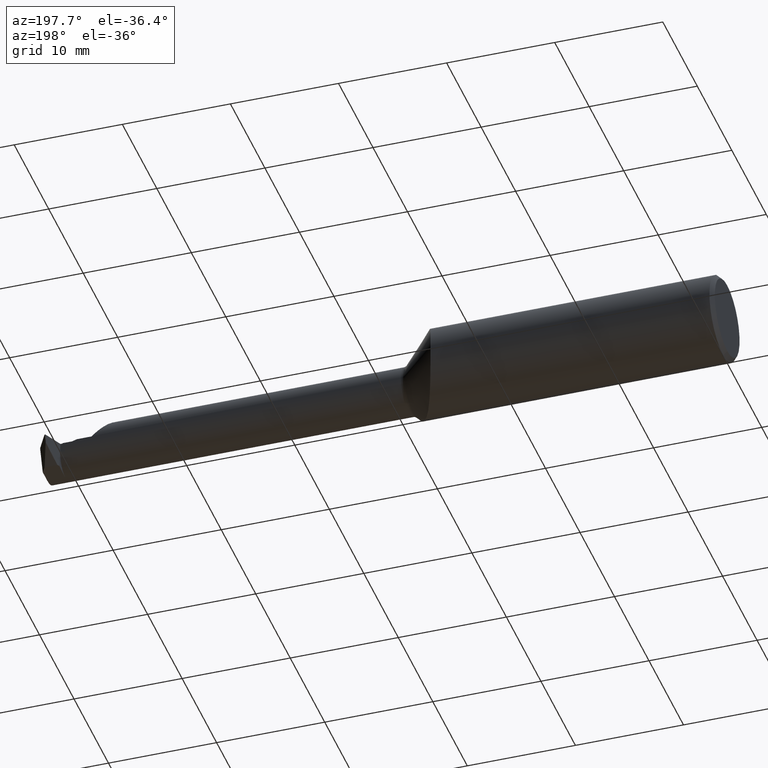
[diagram: clean part render]
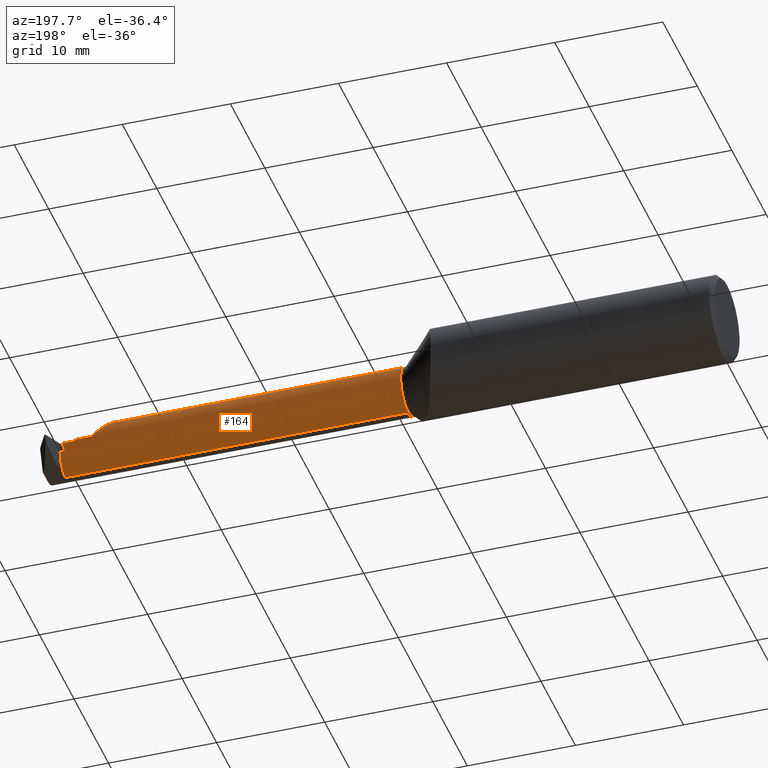
[diagram: same view with one face highlighted and labeled with its STEP entity id]
A machine part, auxiliary view. The second image highlights one B-rep face of the part: STEP entity #164.
In plain terms, the highlighted cylindrical surface (edge-blend (fillet) strip) has radius 2.2352 mm, axis along (-1, -0, -0).
Its self-contained STEP definition (entity closure, byte-faithful):
#1 = CARTESIAN_POINT ( 'NONE',  ( 1.175000000000000266, -0.07609999999999980669, 0.000000000000000000 ) ) ;
#18 = DIRECTION ( 'NONE',  ( 1.000000000000000000, 0.000000000000000000, 0.000000000000000000 ) ) ;
#30 = CARTESIAN_POINT ( 'NONE',  ( 2.428469026081236048, 0.004247839225042313559, -0.03589184770761712218 ) ) ;
#32 = CARTESIAN_POINT ( 'NONE',  ( 1.175000000000000266, -0.07609999999999980669, 0.08799999999999999489 ) ) ;
#45 = AXIS2_PLACEMENT_3D ( 'NONE', #663, #18, #527 ) ;
#47 = CARTESIAN_POINT ( 'NONE',  ( 2.378695623180272722, 0.01174247789466494052, -0.005262991290633963794 ) ) ;
#81 = CARTESIAN_POINT ( 'NONE',  ( 2.411347839225042478, 0.004247839225042324834, -0.03589184770761712218 ) ) ;
#93 = CYLINDRICAL_SURFACE ( 'NONE', #960, 0.08799999999999999489 ) ;
#113 = CARTESIAN_POINT ( 'NONE',  ( 2.310000000000000053, 0.01189539760692049329, 0.0009000000000000391151 ) ) ;
#118 = CARTESIAN_POINT ( 'NONE',  ( 2.370061028289991878, 0.01190000000000033392, -0.001818540825186414642 ) ) ;
#119 = LINE ( 'NONE', #764, #587 ) ;
#138 = VERTEX_POINT ( 'NONE', #730 ) ;
#140 = CARTESIAN_POINT ( 'NONE',  ( 1.175000000000000266, 0.01174247789466520593, -0.005262991290633956855 ) ) ;
#145 = CARTESIAN_POINT ( 'NONE',  ( 2.310000000000000053, -0.07609999999999980669, 0.000000000000000000 ) ) ;
#149 = ORIENTED_EDGE ( 'NONE', *, *, #980, .F. ) ;
#155 = LINE ( 'NONE', #140, #550 ) ;
#164 = ADVANCED_FACE ( 'NONE', ( #820 ), #93, .T. ) ;
#179 = LINE ( 'NONE', #507, #811 ) ;
#186 = VERTEX_POINT ( 'NONE', #920 ) ;
#212 = VERTEX_POINT ( 'NONE', #993 ) ;
#241 = CARTESIAN_POINT ( 'NONE',  ( 2.378695623180272722, 0.01174247789466494052, -0.005262991290633963794 ) ) ;
#248 = EDGE_CURVE ( 'NONE', #469, #186, #425, .T. ) ;
#274 = VECTOR ( 'NONE', #793, 39.37007874015748143 ) ;
#284 = CARTESIAN_POINT ( 'NONE',  ( 2.222899999999999210, -0.07609999999999980669, 0.08799999999999999489 ) ) ;
#308 = ORIENTED_EDGE ( 'NONE', *, *, #881, .F. ) ;
#335 = EDGE_CURVE ( 'NONE', #138, #928, #179, .T. ) ;
#336 = ORIENTED_EDGE ( 'NONE', *, *, #802, .T. ) ;
#350 = CARTESIAN_POINT ( 'NONE',  ( 2.310000000000000053, 0.01189539760692049329, 0.0009000000000000391151 ) ) ;
#355 = EDGE_CURVE ( 'NONE', #477, #212, #119, .T. ) ;
#372 = CARTESIAN_POINT ( 'NONE',  ( 2.365780955931092056, 0.01190000000000018821, 9.866503918139923792E-17 ) ) ;
#389 = CARTESIAN_POINT ( 'NONE',  ( 2.434639333659070370, -0.04034006882080001799, -0.08800000000000000877 ) ) ;
#412 = CARTESIAN_POINT ( 'NONE',  ( 2.435316717154192734, -0.07609999999999980669, -0.08800000000000000877 ) ) ;
#416 =( BOUNDED_CURVE ( )  B_SPLINE_CURVE ( 3, ( #528, #858, #541, #768 ),
 .UNSPECIFIED., .F., .T. ) 
 B_SPLINE_CURVE_WITH_KNOTS ( ( 4, 4 ),
 ( 1.150685214698779824, 1.510953896859879686 ),
 .UNSPECIFIED. ) 
 CURVE ( )  GEOMETRIC_REPRESENTATION_ITEM ( )  RATIONAL_B_SPLINE_CURVE ( ( 1.000000000000000000, 0.9892130885892513881, 0.9892130885892513881, 1.000000000000000000 ) ) 
 REPRESENTATION_ITEM ( '' )  );
#425 = LINE ( 'NONE', #32, #436 ) ;
#436 = VECTOR ( 'NONE', #842, 39.37007874015748143 ) ;
#444 = ORIENTED_EDGE ( 'NONE', *, *, #921, .F. ) ;
#452 = CARTESIAN_POINT ( 'NONE',  ( 2.222899999999999210, -0.07609999999999980669, 0.08799999999999999489 ) ) ;
#456 = VERTEX_POINT ( 'NONE', #1006 ) ;
#469 = VERTEX_POINT ( 'NONE', #284 ) ;
#472 = ORIENTED_EDGE ( 'NONE', *, *, #248, .F. ) ;
#477 = VERTEX_POINT ( 'NONE', #968 ) ;
#489 = DIRECTION ( 'NONE',  ( -1.000000000000000000, -0.000000000000000000, -0.000000000000000000 ) ) ;
#498 = CIRCLE ( 'NONE', #45, 0.08799999999999999489 ) ;
#507 = CARTESIAN_POINT ( 'NONE',  ( 1.175000000000000266, 0.01190000000000018647, -6.429183357567480113E-17 ) ) ;
#527 = DIRECTION ( 'NONE',  ( 0.000000000000000000, 0.000000000000000000, 1.000000000000000000 ) ) ;
#528 = CARTESIAN_POINT ( 'NONE',  ( 2.411347839225042478, 0.004247839225042324834, -0.03589184770761712218 ) ) ;
#541 = CARTESIAN_POINT ( 'NONE',  ( 2.415058778821407071, 0.01110700531487736342, -0.01586940938256944239 ) ) ;
#550 = VECTOR ( 'NONE', #807, 39.37007874015748143 ) ;
#558 = CARTESIAN_POINT ( 'NONE',  ( 2.432082328155025230, -0.01033727445585210306, -0.06854222499267302593 ) ) ;
#567 = AXIS2_PLACEMENT_3D ( 'NONE', #145, #489, #643 ) ;
#587 = VECTOR ( 'NONE', #1018, 39.37007874015748143 ) ;
#590 = ORIENTED_EDGE ( 'NONE', *, *, #355, .T. ) ;
#618 = EDGE_LOOP ( 'NONE', ( #149, #590, #731, #472, #696, #666, #759, #336, #822, #308, #444 ) ) ;
#634 = CARTESIAN_POINT ( 'NONE',  ( 2.428469026081236048, 0.004247839225042313559, -0.03589184770761712218 ) ) ;
#639 = DIRECTION ( 'NONE',  ( 0.000000000000000000, 0.000000000000000000, 1.000000000000000000 ) ) ;
#643 = DIRECTION ( 'NONE',  ( 0.000000000000000000, 0.000000000000000000, 1.000000000000000000 ) ) ;
#648 = CARTESIAN_POINT ( 'NONE',  ( 1.175000000000000266, 0.004247839225042305752, -0.03589184770761712912 ) ) ;
#663 = CARTESIAN_POINT ( 'NONE',  ( 1.185355339059327440, -0.07609999999999980669, 0.000000000000000000 ) ) ;
#666 = ORIENTED_EDGE ( 'NONE', *, *, #1017, .T. ) ;
#674 = B_SPLINE_CURVE_WITH_KNOTS ( 'NONE', 3,
 ( #372, #118, #692, #47 ),
 .UNSPECIFIED., .F., .F.,
 ( 4, 4 ),
 ( 0.01219259453230074966, 0.01254739276405110286 ),
 .UNSPECIFIED. ) ;
#689 = VERTEX_POINT ( 'NONE', #30 ) ;
#692 = CARTESIAN_POINT ( 'NONE',  ( 2.374366865273060956, 0.01184388996493103939, -0.003570363078152082904 ) ) ;
#696 = ORIENTED_EDGE ( 'NONE', *, *, #845, .T. ) ;
#730 = CARTESIAN_POINT ( 'NONE',  ( 2.310000000000000053, 0.01190000000000016912, -6.429183357567478880E-17 ) ) ;
#731 = ORIENTED_EDGE ( 'NONE', *, *, #1032, .T. ) ;
#743 = DIRECTION ( 'NONE',  ( -1.000000000000000000, -0.000000000000000000, -0.000000000000000000 ) ) ;
#745 = VERTEX_POINT ( 'NONE', #350 ) ;
#759 = ORIENTED_EDGE ( 'NONE', *, *, #335, .T. ) ;
#764 = CARTESIAN_POINT ( 'NONE',  ( 1.175000000000000266, -0.07609999999999979281, -0.08799999999999999489 ) ) ;
#768 = CARTESIAN_POINT ( 'NONE',  ( 2.417024562220710937, 0.01174247789466516256, -0.005262991290633956855 ) ) ;
#793 = DIRECTION ( 'NONE',  ( -1.000000000000000000, -0.000000000000000000, -0.000000000000000000 ) ) ;
#802 = EDGE_CURVE ( 'NONE', #928, #965, #674, .T. ) ;
#807 = DIRECTION ( 'NONE',  ( 1.000000000000000000, 0.000000000000000000, 0.000000000000000000 ) ) ;
#811 = VECTOR ( 'NONE', #832, 39.37007874015748143 ) ;
#814 = CARTESIAN_POINT ( 'NONE',  ( 2.365780955931092056, 0.01190000000000018821, 9.866503918139923792E-17 ) ) ;
#820 = FACE_OUTER_BOUND ( 'NONE', #618, .T. ) ;
#822 = ORIENTED_EDGE ( 'NONE', *, *, #942, .T. ) ;
#832 = DIRECTION ( 'NONE',  ( 1.000000000000000000, 0.000000000000000000, 0.000000000000000000 ) ) ;
#842 = DIRECTION ( 'NONE',  ( -1.000000000000000000, -0.000000000000000000, -0.000000000000000000 ) ) ;
#845 = EDGE_CURVE ( 'NONE', #469, #745, #896, .T. ) ;
#858 = CARTESIAN_POINT ( 'NONE',  ( 2.413145903809557957, 0.008581550568380755944, -0.02619035936132612860 ) ) ;
#881 = EDGE_CURVE ( 'NONE', #1015, #456, #416, .T. ) ;
#896 =( BOUNDED_CURVE ( )  B_SPLINE_CURVE ( 3, ( #452, #1027, #945, #113 ),
 .UNSPECIFIED., .F., .F. ) 
 B_SPLINE_CURVE_WITH_KNOTS ( ( 4, 4 ),
 ( 0.000000000000000000, 1.560568875768707287 ),
 .UNSPECIFIED. ) 
 CURVE ( )  GEOMETRIC_REPRESENTATION_ITEM ( )  RATIONAL_B_SPLINE_CURVE ( ( 1.000000000000000000, 0.8071423132977800785, 0.8071423132977800785, 1.000000000000000000 ) ) 
 REPRESENTATION_ITEM ( '' )  );
#920 = CARTESIAN_POINT ( 'NONE',  ( 1.185355339059327440, -0.07609999999999980669, 0.08799999999999999489 ) ) ;
#921 = EDGE_CURVE ( 'NONE', #689, #1015, #1037, .T. ) ;
#928 = VERTEX_POINT ( 'NONE', #814 ) ;
#942 = EDGE_CURVE ( 'NONE', #965, #456, #155, .T. ) ;
#945 = CARTESIAN_POINT ( 'NONE',  ( 2.258870525711519583, 0.01137245517912228825, 0.05202947428848025274 ) ) ;
#953 =( BOUNDED_CURVE ( )  B_SPLINE_CURVE ( 3, ( #412, #389, #558, #634 ),
 .UNSPECIFIED., .F., .T. ) 
 B_SPLINE_CURVE_WITH_KNOTS ( ( 4, 4 ),
 ( 3.324852225049197862, 4.475537439747977686 ),
 .UNSPECIFIED. ) 
 CURVE ( )  GEOMETRIC_REPRESENTATION_ITEM ( )  RATIONAL_B_SPLINE_CURVE ( ( 1.000000000000000000, 0.8926706209173645989, 0.8926706209173645989, 1.000000000000000000 ) ) 
 REPRESENTATION_ITEM ( '' )  );
#955 = CIRCLE ( 'NONE', #567, 0.08799999999999999489 ) ;
#960 = AXIS2_PLACEMENT_3D ( 'NONE', #1, #743, #639 ) ;
#965 = VERTEX_POINT ( 'NONE', #241 ) ;
#968 = CARTESIAN_POINT ( 'NONE',  ( 2.435316717154192734, -0.07609999999999980669, -0.08800000000000000877 ) ) ;
#980 = EDGE_CURVE ( 'NONE', #477, #689, #953, .T. ) ;
#993 = CARTESIAN_POINT ( 'NONE',  ( 1.185355339059327440, -0.07609999999999979281, -0.08799999999999999489 ) ) ;
#1006 = CARTESIAN_POINT ( 'NONE',  ( 2.417024562220710937, 0.01174247789466516256, -0.005262991290633956855 ) ) ;
#1015 = VERTEX_POINT ( 'NONE', #81 ) ;
#1017 = EDGE_CURVE ( 'NONE', #745, #138, #955, .T. ) ;
#1018 = DIRECTION ( 'NONE',  ( -1.000000000000000000, -0.000000000000000000, -0.000000000000000000 ) ) ;
#1027 = CARTESIAN_POINT ( 'NONE',  ( 2.222899999999999654, -0.02496785150417427449, 0.08800000000000000877 ) ) ;
#1032 = EDGE_CURVE ( 'NONE', #212, #186, #498, .T. ) ;
#1037 = LINE ( 'NONE', #648, #274 ) ;